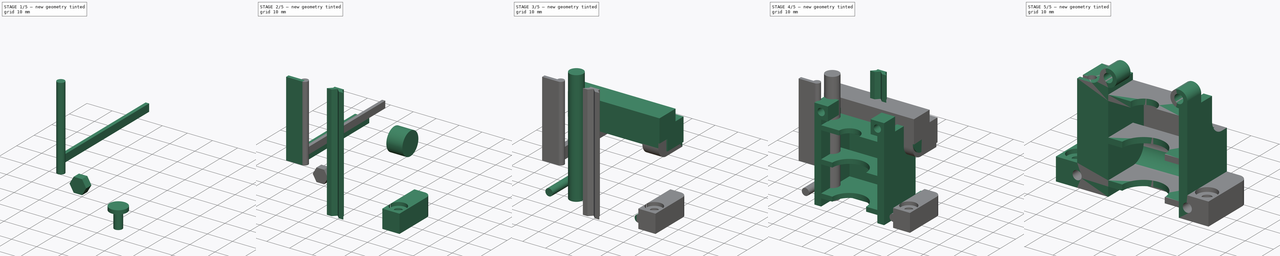
[diagram: build sequence overview — one tinted view per stage of 5, left to right]
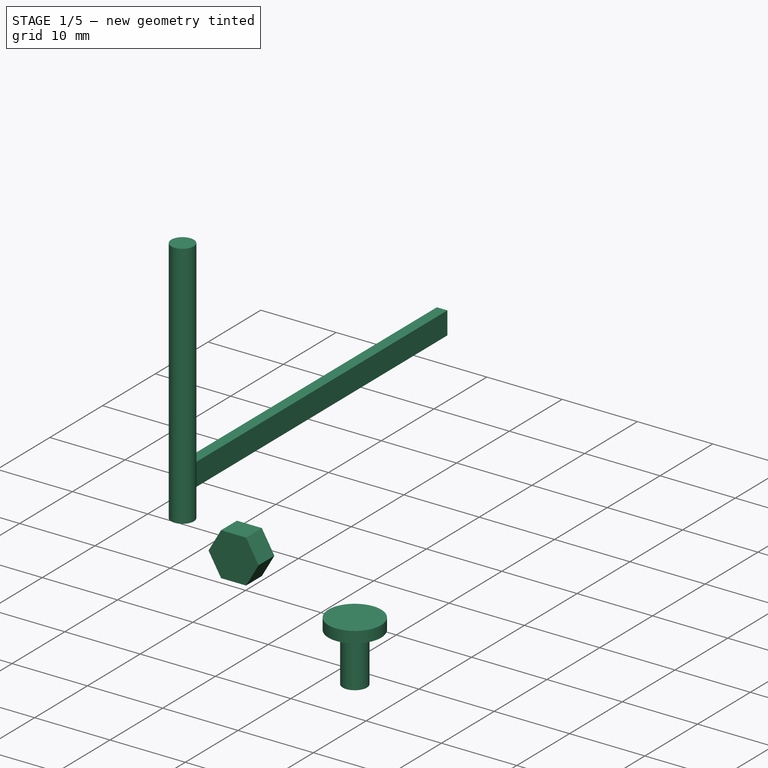
[diagram: stage 1 of 5 — iso view after this stage's code; geometry added in this stage tinted green]
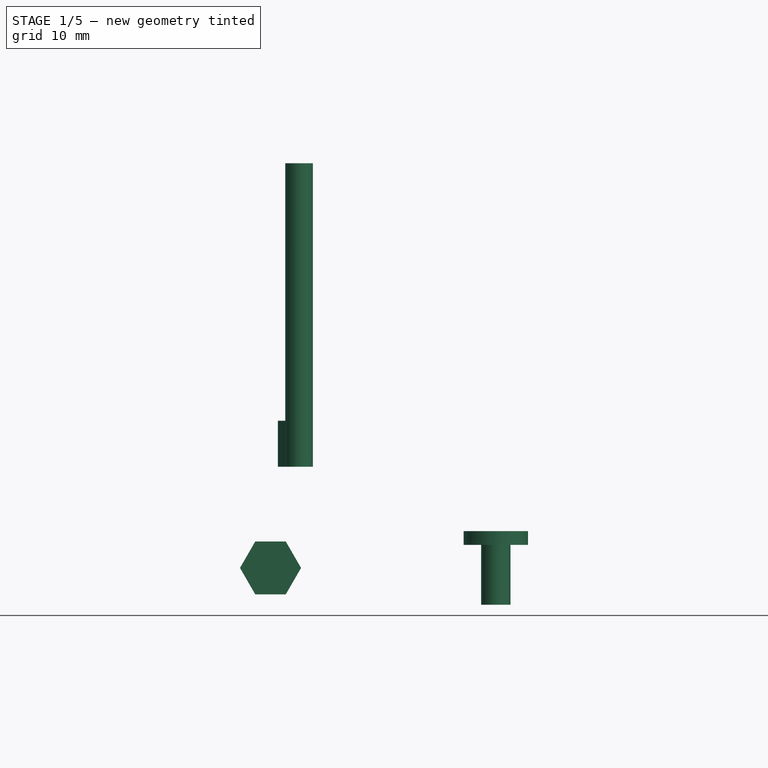
[diagram: stage 1 of 5 — front view after this stage's code; geometry added in this stage tinted green]
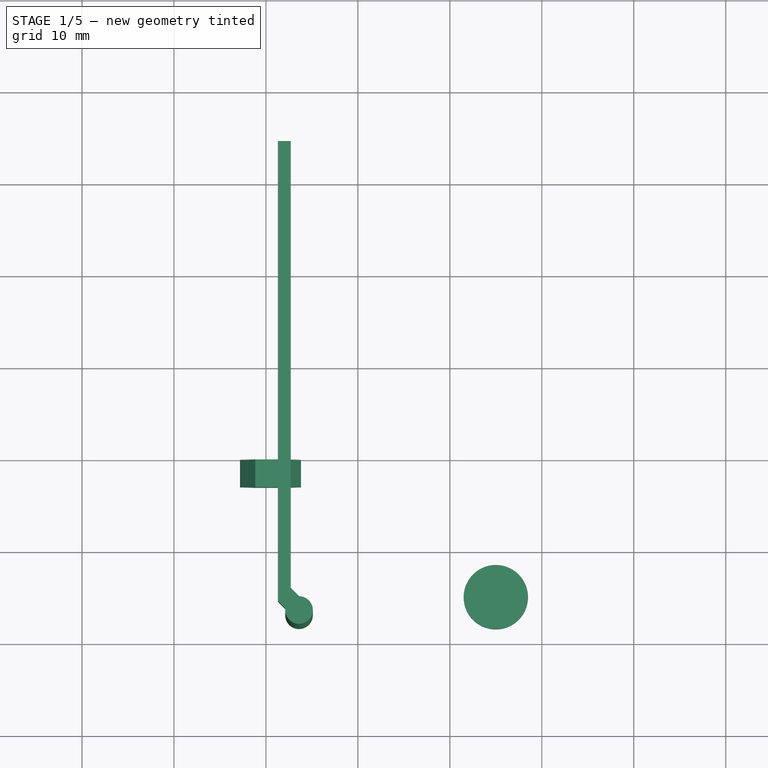
[diagram: stage 1 of 5 — top view after this stage's code; geometry added in this stage tinted green]
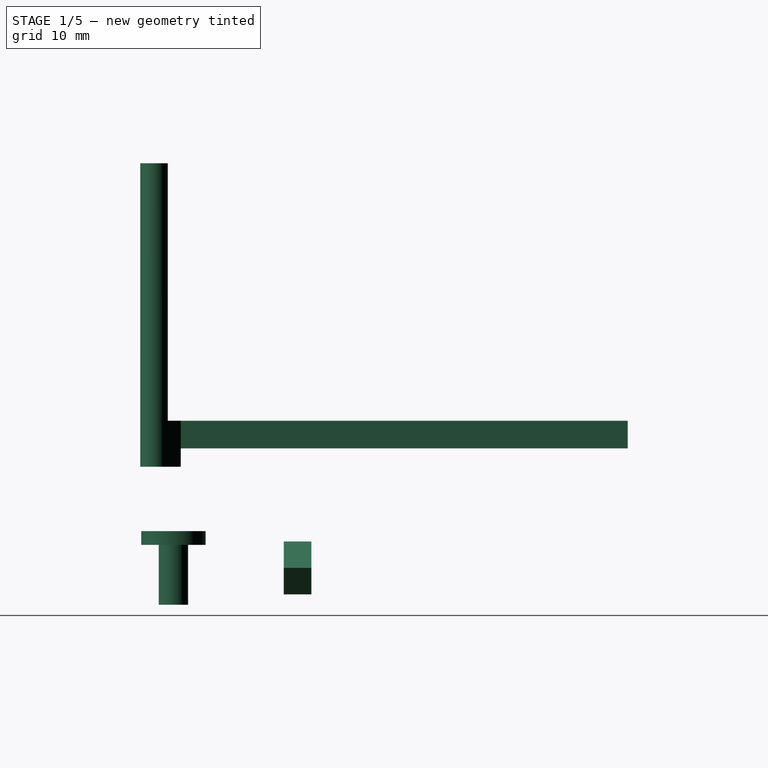
[diagram: stage 1 of 5 — right view after this stage's code; geometry added in this stage tinted green]
FCSTD DOCUMENT  (FreeCAD 0.18R15441 (Git))
Label: HotendClippingRightHalf_E3DV6_Bowden
License: All rights reserved
LicenseURL: http://en.wikipedia.org/wiki/All_rights_reserved
objects: Part::Box×10, Sketcher::SketchObject×8, Part::Cylinder×8, PartDesign::Pad×7, PartDesign::Plane×4, Part::Mirroring×4, PartDesign::Body×3, Part::MultiFuse×3, Part::Fillet×3, Part::Cut×2, PartDesign::Pocket×1, PartDesign::Fillet×1, PartDesign::FeatureBase×1, Part::FeaturePython×1, App::Part×1
note: 64 computed .brp shape members not serialized (recipe doc carries the construction recipe); baked Part::Feature solids carry a one-line shape summary decoded from their .brp

FEATURE [Part::Cylinder] Cylinder  label="ClipCilinder"
  Angle = 360
  AttacherType = Attacher::AttachEngine3D
  Height = 8
  Placement = pos=(5,5,0) rot=(0,0,1;0rad)
  Radius = 1.6
FEATURE [Part::Cylinder] Cylinder010  label="ClipTopCilinder"
  Angle = 360
  AttacherType = Attacher::AttachEngine3D
  Height = 1.5
  Placement = pos=(5,5,6.5) rot=(0,0,1;0rad)
  Radius = 3.5
FEATURE [Part::MultiFuse] Fusion002  label="ClipCilinderFusion"
  Shapes = -> [Cylinder,Cylinder010]
FEATURE [Sketcher::SketchObject] Sketch009  label="NutSketch"
  MapMode = 5
  Placement = pos=(0,0,0) rot=(1,0,0;1.5708rad)
  Support = -> [XZ_Plane003]
  sketch-geometry (7):
    g0: LineSegment StartX=3.31976 StartY=0 StartZ=0 EndX=1.65988 EndY=2.875 EndZ=0
    g1: LineSegment StartX=1.65988 StartY=2.875 StartZ=0 EndX=-1.65988 EndY=2.875 EndZ=0
    g2: LineSegment StartX=-1.65988 StartY=2.875 StartZ=0 EndX=-3.31976 EndY=4e-16 EndZ=0
    g3: LineSegment StartX=-3.31976 StartY=4e-16 StartZ=0 EndX=-1.65988 EndY=-2.875 EndZ=0
    g4: LineSegment StartX=-1.65988 StartY=-2.875 StartZ=0 EndX=1.65988 EndY=-2.875 EndZ=0
    g5: LineSegment StartX=1.65988 StartY=-2.875 StartZ=0 EndX=3.31976 EndY=0 EndZ=0
    g6: Circle [constr] CenterX=0 CenterY=0 CenterZ=0 NormalX=0 NormalY=0 NormalZ=1 AngleXU=0 Radius=3.31976
  constraints (16):
    c: Coincident(g0,g1)
    c: Coincident(g1,g2)
    c: Coincident(g2,g3)
    c: Coincident(g3,g4)
    c: Coincident(g4,g5)
    c: Coincident(g5,g0)
    c: Equal(g0, g1-g5) x5
    c: PointOnObject(g0,g6)
    c: PointOnObject(g1,g6)
    c: PointOnObject(g2,g6)
    c: PointOnObject(g3,g6)
    c: PointOnObject(g4,g6)
    c: PointOnObject(g5,g6)
    c: Coincident(g6,g-1)
    c: PointOnObject(g5,g-1)
    c: Distance(g4,g0) = 5.75
FEATURE [PartDesign::Pad] Pad006  label="NutPad"
  Length = 3
  Length2 = 100
  Placement = pos=(0,0,0) rot=(1,0,0;1.5708rad)
  Profile = -> Sketch009
  Reversed = true
  Type = 0
FEATURE [PartDesign::Body] Body002  label="NutBody"
  Group = -> [Sketch009,Pad006]
  Origin = -> Origin003
  Placement = pos=(19.5,17,4) rot=(0,0,1;0rad)
  Tip = -> Pad006
FEATURE [PartDesign::FeatureBase] Clone  label="NutClone"
  BaseFeature = -> Body002
  Placement = pos=(-19.5,17,4) rot=(0,0,1;0rad)
FEATURE [Part::Cylinder] Cylinder011  label="FanWiresChannelCilinder1"
  Angle = 360
  AttacherType = Attacher::AttachEngine3D
  Height = 33
  Placement = pos=(-16.4,2.9,15) rot=(0,0,1;0rad)
  Radius = 1.5
FEATURE [Part::Box] Box013  label="FanWiresChannelCube1"
  AttacherType = Attacher::AttachEngine3D
  Height = 3
  Length = 1.4
  Placement = pos=(-18.7,4.4,17) rot=(0,0,1;0rad)
  Width = 50
FEATURE [Part::Box] Box014  label="FanWiresChannelCube2"
  AttacherType = Attacher::AttachEngine3D
  Height = 5
  Length = 2
  Placement = pos=(-16.5787,2.25858,15) rot=(0,0,1;0.785398rad)
  Width = 3
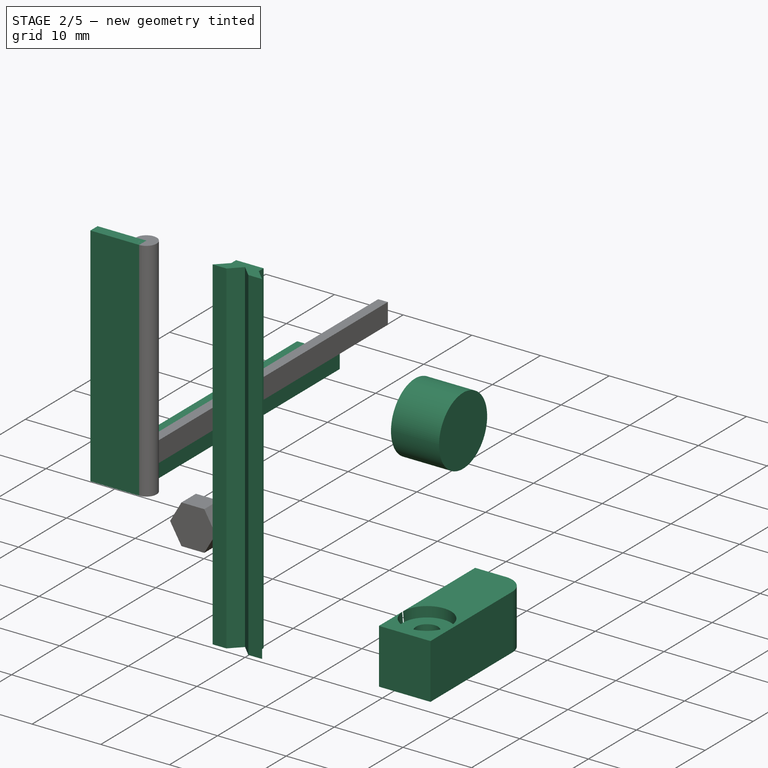
[diagram: stage 2 of 5 — iso view after this stage's code; geometry added in this stage tinted green]
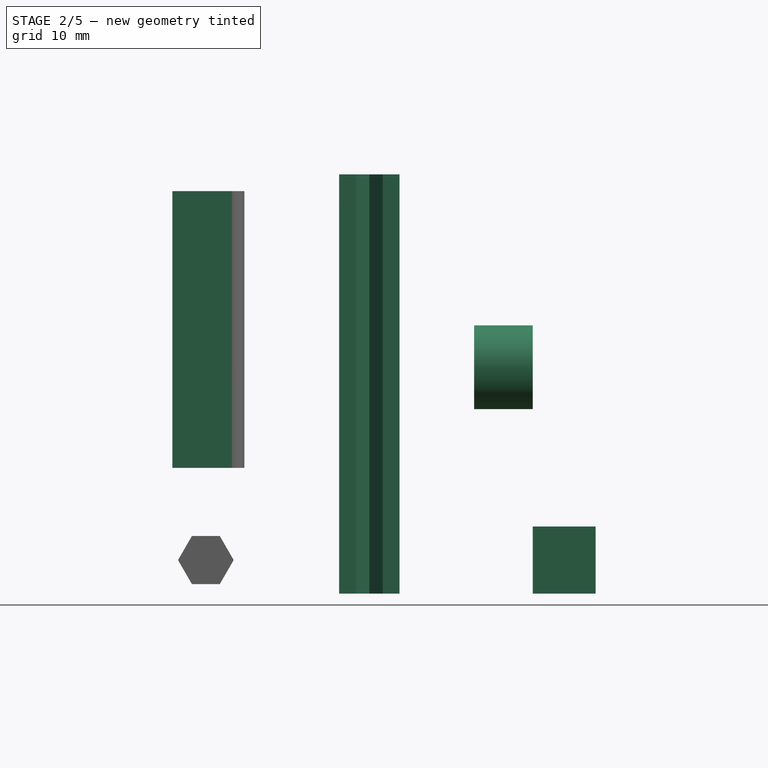
[diagram: stage 2 of 5 — front view after this stage's code; geometry added in this stage tinted green]
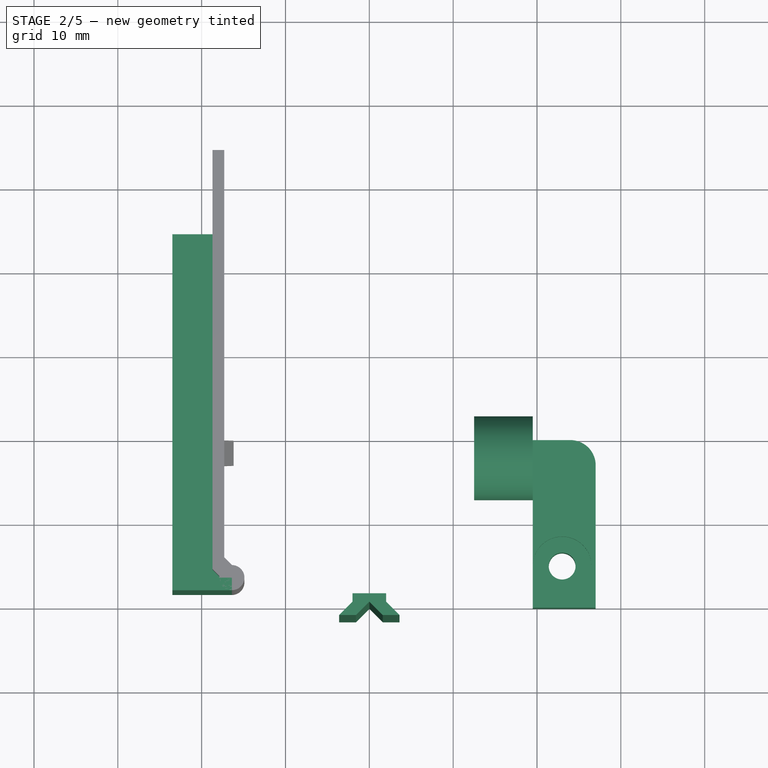
[diagram: stage 2 of 5 — top view after this stage's code; geometry added in this stage tinted green]
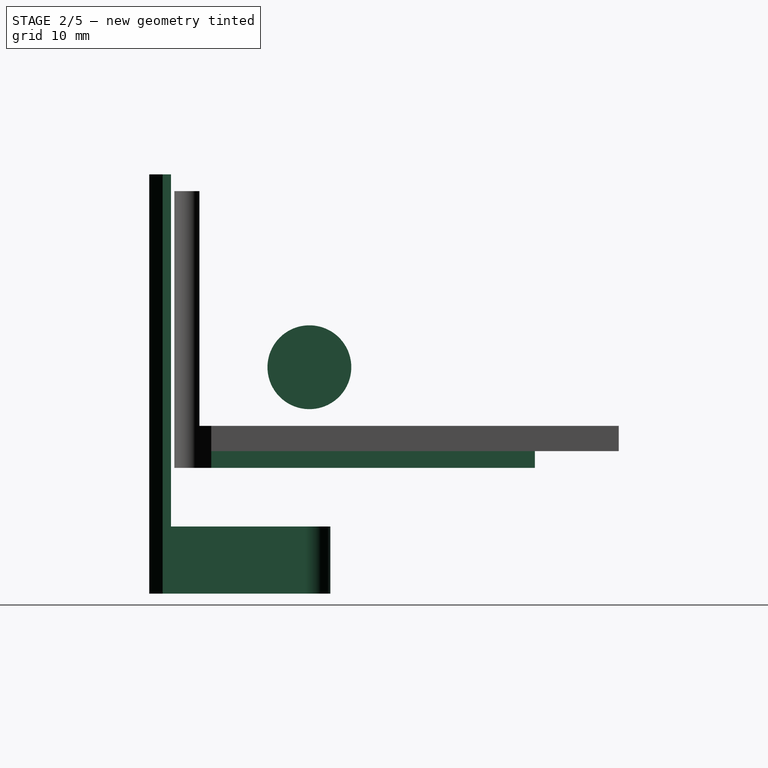
[diagram: stage 2 of 5 — right view after this stage's code; geometry added in this stage tinted green]
FEATURE [Part::Box] Box  label="ClipCube"
  AttacherType = Attacher::AttachEngine3D
  Height = 8
  Length = 7.5
  Placement = pos=(1.5,0,0) rot=(0,0,1;0rad)
  Width = 20
FEATURE [PartDesign::Body] Body  label="RadiatorClipBody"
  Group = -> [Sketch,Pad,DatumPlane,Sketch001,Pad001,DatumPlane001,Sketch002,Pad002,DatumPlane002,Sketch003,Pad003,DatumPlane003,Sketch004,Pocket,Sketch007,Pad004,Fillet]
  Origin = -> Origin001
  Placement = pos=(4,0,0) rot=(0,0,1;0rad)
  Tip = -> Fillet
FEATURE [Part::Cylinder] Cylinder008  label="SideNutCutCilinder"
  Angle = 360
  AttacherType = Attacher::AttachEngine3D
  Height = 7
  Placement = pos=(-19.5,17.5,27) rot=(0,1,0;1.5708rad)
  Radius = 5
FEATURE [Part::Mirroring] Part__Mirroring003  label="SideNutCutCilinder_Mirror"
  Base = (0,0,0)
  Normal = (1,0,0)
  Source = -> Cylinder008
FEATURE [Sketcher::SketchObject] Sketch008  label="RailSketch"
  MapMode = 5
  Support = -> [XY_Plane002]
  sketch-geometry (9):
    g0: LineSegment StartX=-2 StartY=0 StartZ=0 EndX=-3.6 EndY=-1.6 EndZ=0
    g1: LineSegment StartX=2 StartY=0 StartZ=0 EndX=3.6 EndY=-1.6 EndZ=0
    g2: LineSegment StartX=0 StartY=0 StartZ=0 EndX=-1.6 EndY=-1.6 EndZ=0
    g3: LineSegment StartX=0 StartY=0 StartZ=0 EndX=1.6 EndY=-1.6 EndZ=0
    g4: LineSegment StartX=3.6 StartY=-1.6 StartZ=0 EndX=1.6 EndY=-1.6 EndZ=0
    g5: LineSegment StartX=-1.6 StartY=-1.6 StartZ=0 EndX=-3.6 EndY=-1.6 EndZ=0
    g6: LineSegment StartX=-2 StartY=0 StartZ=0 EndX=-2 EndY=1 EndZ=0
    g7: LineSegment StartX=-2 StartY=1 StartZ=0 EndX=2 EndY=1 EndZ=0
    g8: LineSegment StartX=2 StartY=1 StartZ=0 EndX=2 EndY=0 EndZ=0
  constraints (23):
    c: PointOnObject(g0,g-1)
    c: Symmetric(g0,g1,g-2)
    c: Coincident(g2,g-1)
    c: Coincident(g3,g2)
    c: Coincident(g4,g1)
    c: Coincident(g4,g3)
    c: Horizontal(g4)
    c: Coincident(g5,g2)
    c: Coincident(g5,g0)
    c: Symmetric(g2,g3,g-2)
    c: Symmetric(g1,g0,g-2)
    c: Parallel(g1,g3)
    c: DistanceY(g-1,g1) = -1.6
    c: Angle(g2,g3) = 1.5708
    c: Coincident(g6,g0)
    c: Vertical(g6)
    c: Coincident(g7,g6)
    c: Horizontal(g7)
    c: Coincident(g8,g7)
    c: Coincident(g8,g1)
    c: Vertical(g8)
    c: Distance(g8) = 1
    c: Distance(g7) = 4
FEATURE [PartDesign::Pad] Pad005  label="RailPad"
  Length = 50
  Length2 = 100
  Profile = -> Sketch008
  Type = 0
FEATURE [PartDesign::Body] Body001  label="RearClipRailBody"
  Group = -> [Sketch008,Pad005]
  Origin = -> Origin002
  Placement = pos=(0,20,0) rot=(0,0,1;0rad)
  Tip = -> Pad005
FEATURE [Part::Box] Box011  label="FanWiresChannelCube"
  AttacherType = Attacher::AttachEngine3D
  Height = 2
  Length = 6.2
  Placement = pos=(-23.5,1.4,15) rot=(0,0,1;0rad)
  Width = 43
FEATURE [Part::Box] Box012  label="HeaterWiresChannelCube"
  AttacherType = Attacher::AttachEngine3D
  Height = 33
  Length = 7.1
  Placement = pos=(-23.5,1.4,15) rot=(0,0,1;0rad)
  Width = 1.5
FEATURE [Part::Cut] Cut  label="RightClipCut"
  Base = -> Box
  Placement = pos=(18,0,0) rot=(0,0,1;0rad)
  Tool = -> Fusion002
FEATURE [Part::Fillet] Fillet001  label="RightClipCutFillet"
  Base = -> Cut
  Edges = 1 edges r=3: [Edge17]
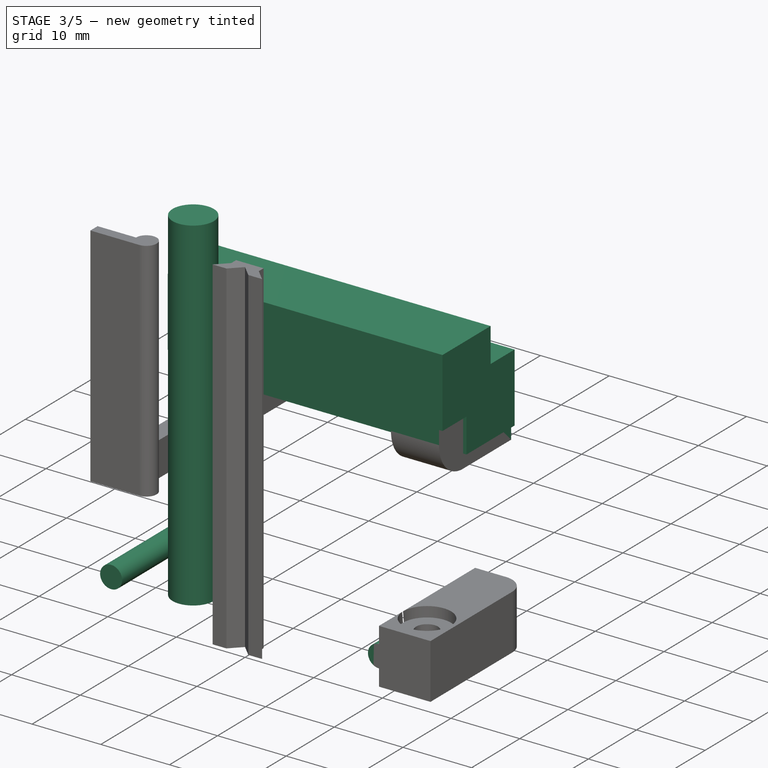
[diagram: stage 3 of 5 — iso view after this stage's code; geometry added in this stage tinted green]
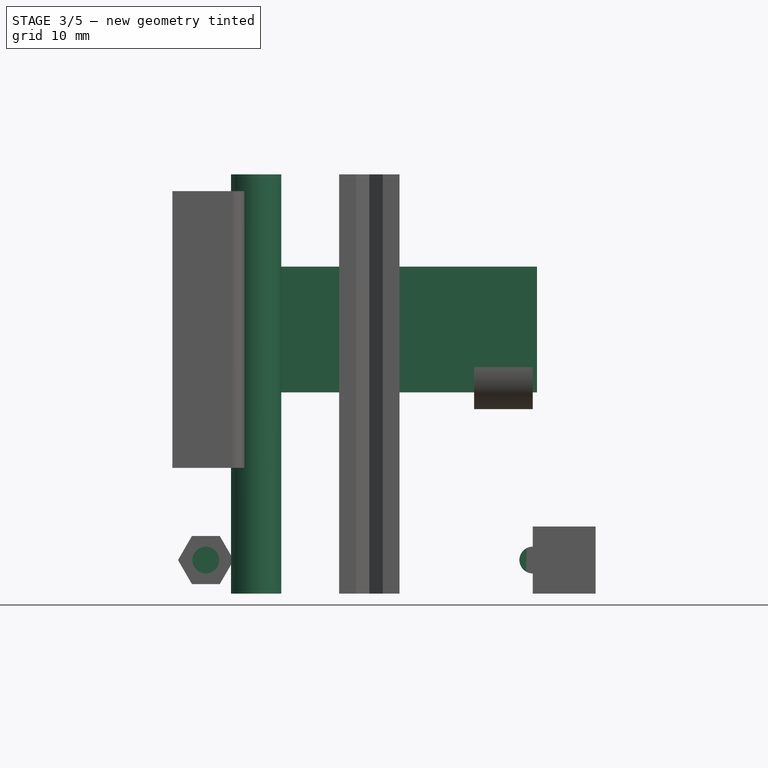
[diagram: stage 3 of 5 — front view after this stage's code; geometry added in this stage tinted green]
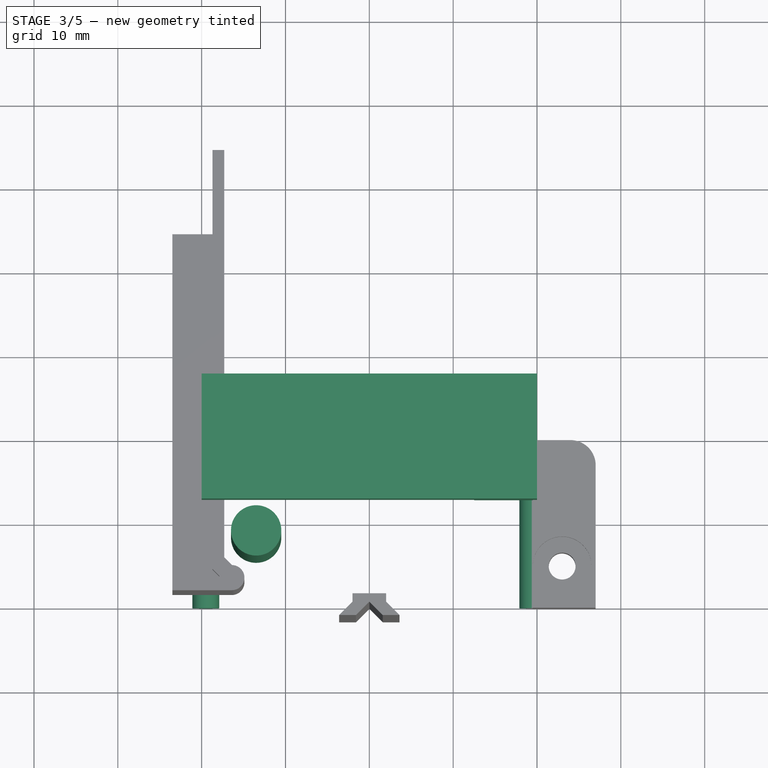
[diagram: stage 3 of 5 — top view after this stage's code; geometry added in this stage tinted green]
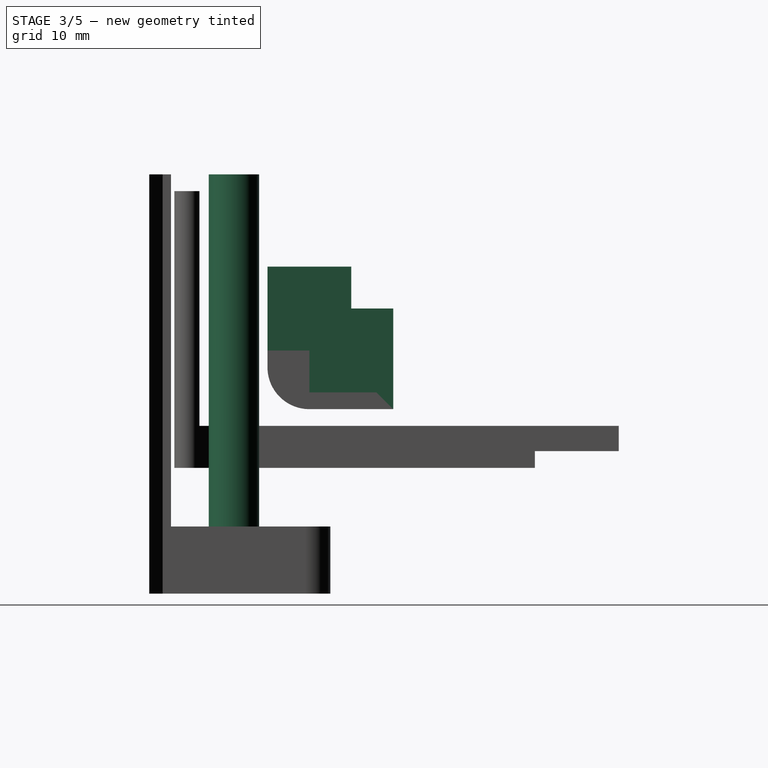
[diagram: stage 3 of 5 — right view after this stage's code; geometry added in this stage tinted green]
FEATURE [Part::Box] Box002  label="TopRodCutCube1"
  AttacherType = Attacher::AttachEngine3D
  Height = 10
  Length = 40
  Placement = pos=(-20,12.5,29) rot=(0,0,1;0rad)
  Width = 10
FEATURE [Part::Box] Box003  label="TopRodCutCube2"
  AttacherType = Attacher::AttachEngine3D
  Height = 10
  Length = 40
  Placement = pos=(-20,17.5,24) rot=(0,0,1;0rad)
  Width = 10
FEATURE [Part::Cylinder] Cylinder003  label="BottomClipCilinder1"
  Angle = 360
  AttacherType = Attacher::AttachEngine3D
  Height = 20
  Placement = pos=(19.5,4e-15,4) rot=(-1,0,0;1.5708rad)
  Radius = 1.6
FEATURE [Part::Cylinder] Cylinder005  label="BottomClipCilinder3"
  Angle = 360
  AttacherType = Attacher::AttachEngine3D
  Height = 20
  Placement = pos=(-19.5,4e-15,4) rot=(-1,0,0;1.5708rad)
  Radius = 1.6
FEATURE [Part::Cylinder] Cylinder007  label="HeaterWiresChannelCilinder"
  Angle = 360
  AttacherType = Attacher::AttachEngine3D
  Height = 50
  Placement = pos=(-13.5,8.5,0) rot=(0,0,1;0rad)
  Radius = 3
FEATURE [Part::Box] Box009  label="SideNutCutCube1"
  AttacherType = Attacher::AttachEngine3D
  Height = 10
  Length = 7
  Placement = pos=(-19.5,12.5,27) rot=(0,0,1;0rad)
  Width = 10
FEATURE [Part::Box] Box010  label="SineNutCutCube2"
  AttacherType = Attacher::AttachEngine3D
  Height = 10
  Length = 7
  Placement = pos=(-19.5,17.5,22) rot=(0,0,1;0rad)
  Width = 10
FEATURE [Part::Mirroring] Part__Mirroring001  label="SideNutCutCube1_Mirror"
  Base = (0,0,0)
  Normal = (1,0,0)
  Source = -> Box009
FEATURE [Part::Mirroring] Part__Mirroring002  label="SineNutCutCube2_Mirror"
  Base = (0,0,0)
  Normal = (1,0,0)
  Source = -> Box010
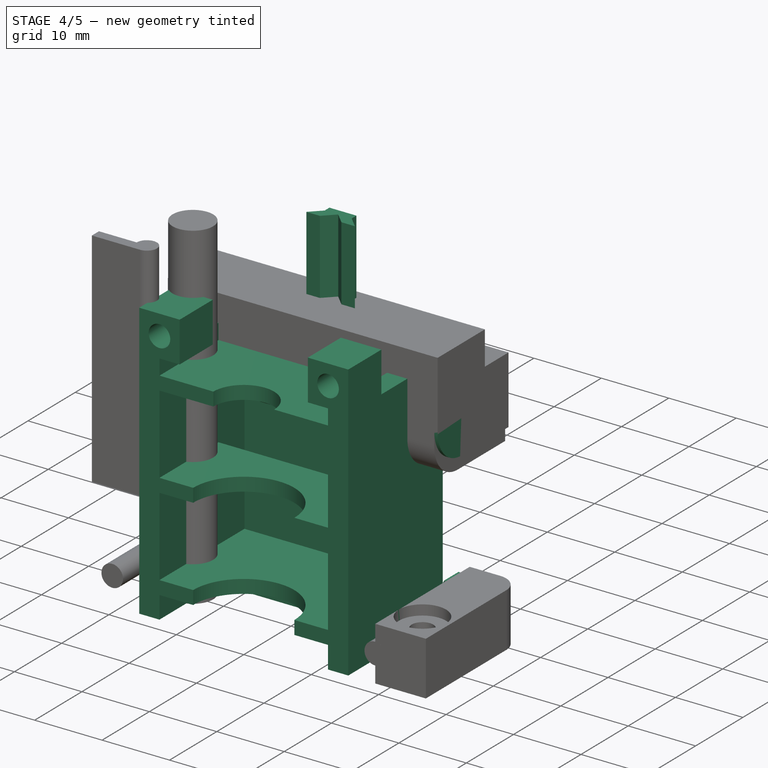
[diagram: stage 4 of 5 — iso view after this stage's code; geometry added in this stage tinted green]
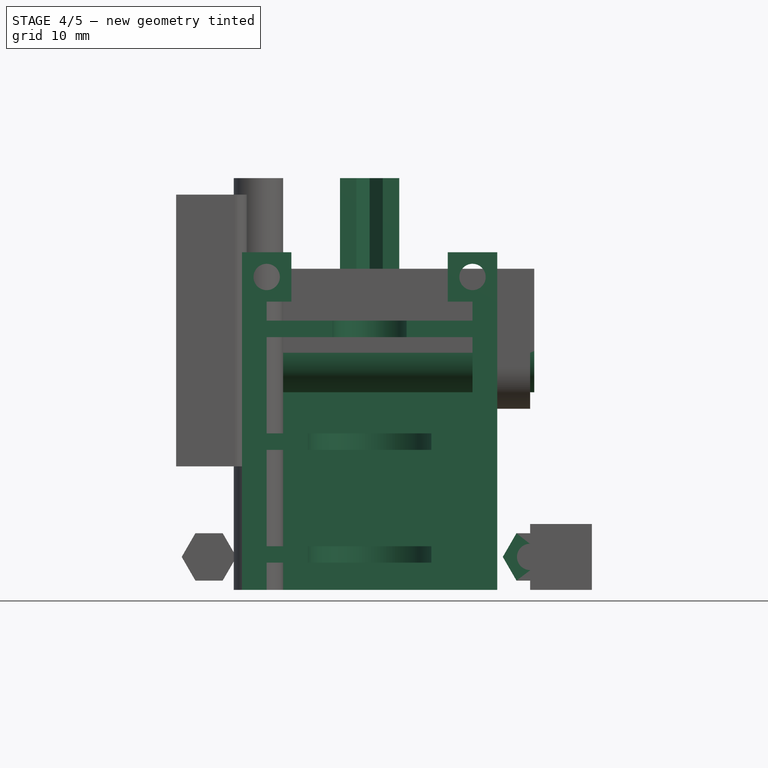
[diagram: stage 4 of 5 — front view after this stage's code; geometry added in this stage tinted green]
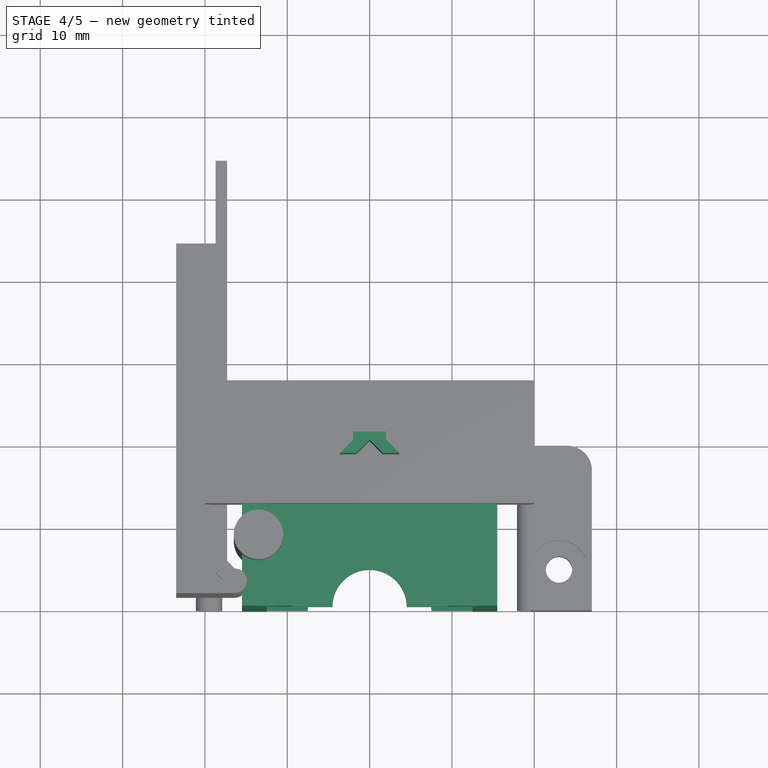
[diagram: stage 4 of 5 — top view after this stage's code; geometry added in this stage tinted green]
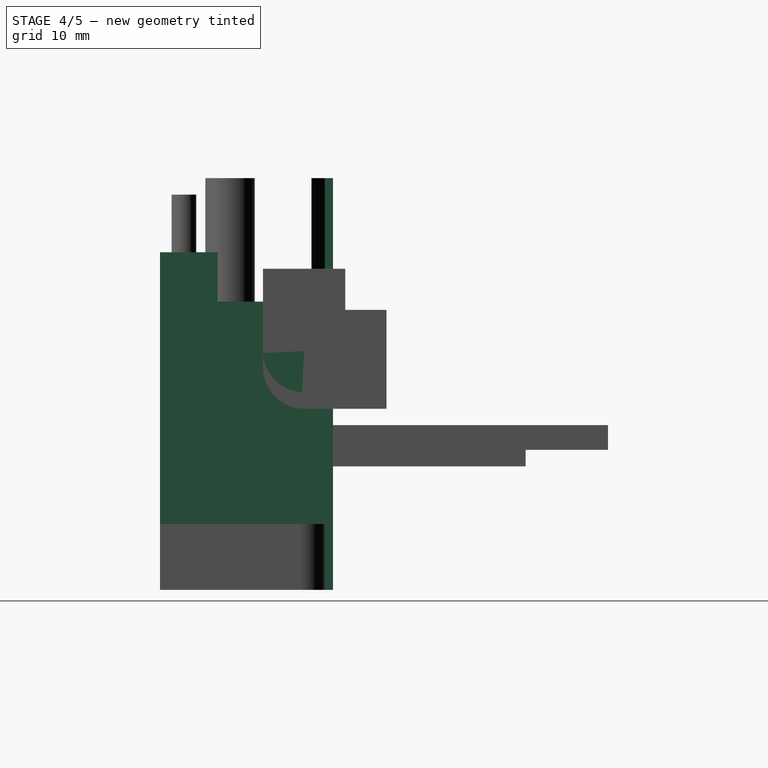
[diagram: stage 4 of 5 — right view after this stage's code; geometry added in this stage tinted green]
FEATURE [Sketcher::SketchObject] Sketch  label="BaseSketch"
  MapMode = 5
  Support = -> [XY_Plane001]
  sketch-geometry (8):
    g0: LineSegment StartX=-12.5 StartY=0 StartZ=0 EndX=-15.5 EndY=0 EndZ=0
    g1: LineSegment StartX=12.5 StartY=0 StartZ=0 EndX=15.5 EndY=0 EndZ=0
    g2: LineSegment StartX=-15.5 StartY=0 StartZ=0 EndX=-15.5 EndY=20 EndZ=0
    g3: LineSegment StartX=-15.5 StartY=20 StartZ=0 EndX=15.5 EndY=20 EndZ=0
    g4: LineSegment StartX=15.5 StartY=20 StartZ=0 EndX=15.5 EndY=0 EndZ=0
    g5: LineSegment StartX=-12.5 StartY=0 StartZ=0 EndX=-12.5 EndY=12.5 EndZ=0
    g6: LineSegment StartX=-12.5 StartY=12.5 StartZ=0 EndX=12.5 EndY=12.5 EndZ=0
    g7: LineSegment StartX=12.5 StartY=12.5 StartZ=0 EndX=12.5 EndY=0 EndZ=0
  constraints (22):
    c: PointOnObject(g0,g-1)
    c: PointOnObject(g0,g-1)
    c: Coincident(g2,g0)
    c: Vertical(g2)
    c: Coincident(g3,g2)
    c: Horizontal(g3)
    c: Coincident(g4,g3)
    c: Coincident(g4,g1)
    c: Vertical(g4)
    c: Symmetric(g1,g0,g-2)
    c: Distance(g4) = 20
    c: Distance(g3) = 31
    c: Symmetric(g1,g0,g-2)
    c: Coincident(g5,g0)
    c: Vertical(g5)
    c: Coincident(g6,g5)
    c: Horizontal(g6)
    c: Coincident(g7,g6)
    c: Coincident(g7,g1)
    c: Vertical(g7)
    c: Distance(g6) = 25
    c: Distance(g7) = 12.5
FEATURE [PartDesign::Pad] Pad  label="BasePad"
  Length = 35
  Length2 = 100
  Profile = -> Sketch
  Type = 0
FEATURE [PartDesign::Plane] DatumPlane  label="Clip1Plane"
  AttachmentOffset = pos=(0,0,3.3) rot=(0,0,1;0rad)
  Length = 37.0992
  MapMode = 5
  Placement = pos=(0,0,3.3) rot=(0,0,1;0rad)
  ResizeMode = 0
  Support = -> [XY_Plane001]
  Width = 36.0992
FEATURE [Sketcher::SketchObject] Sketch001  label="Clip1Sketch"
  ExternalGeometry = -> [Sketch]
  MapMode = 5
  Placement = pos=(0,0,3.3) rot=(0,0,1;0rad)
  Support = -> [DatumPlane]
  sketch-geometry (6):
    g0: ArcOfCircle CenterX=0 CenterY=0 CenterZ=0 NormalX=0 NormalY=0 NormalZ=1 AngleXU=0 Radius=7.5 StartAngle=0 EndAngle=3.14159
    g1: LineSegment StartX=-7.5 StartY=0 StartZ=0 EndX=-12.5 EndY=0 EndZ=0
    g2: LineSegment StartX=-12.5 StartY=0 StartZ=0 EndX=-12.5 EndY=12.5 EndZ=0
    g3: LineSegment StartX=-12.5 StartY=12.5 StartZ=0 EndX=12.5 EndY=12.5 EndZ=0
    g4: LineSegment StartX=12.5 StartY=12.5 StartZ=0 EndX=12.5 EndY=0 EndZ=0
    g5: LineSegment StartX=12.5 StartY=0 StartZ=0 EndX=7.5 EndY=0 EndZ=0
  constraints (14):
    c: Coincident(g0,g-1)
    c: PointOnObject(g0,g-1)
    c: PointOnObject(g0,g-1)
    c: Coincident(g1,g0)
    c: Coincident(g1,g-3)
    c: Coincident(g2,g1)
    c: Coincident(g2,g-4)
    c: Coincident(g3,g2)
    c: Coincident(g3,g-5)
    c: Coincident(g4,g3)
    c: Coincident(g4,g-5)
    c: Coincident(g5,g4)
    c: Coincident(g5,g0)
    c: Radius(g0) = 7.5
FEATURE [PartDesign::Pad] Pad001  label="Clip1Pad"
  BaseFeature = -> Pad
  Length = 2
  Length2 = 100
  Profile = -> Sketch001
  Type = 0
FEATURE [PartDesign::Plane] DatumPlane001  label="Clip2Plane"
  AttachmentOffset = pos=(0,0,17) rot=(0,0,1;0rad)
  Length = 37.0992
  MapMode = 5
  Placement = pos=(0,0,17) rot=(0,0,1;0rad)
  ResizeMode = 0
  Support = -> [XY_Plane001]
  Width = 36.0992
FEATURE [Sketcher::SketchObject] Sketch002  label="Clip2Sketch"
  ExternalGeometry = -> [Sketch001]
  MapMode = 5
  Placement = pos=(0,0,17) rot=(0,0,1;0rad)
  Support = -> [DatumPlane001]
  sketch-geometry (6):
    g0: LineSegment StartX=7.5 StartY=0 StartZ=0 EndX=12.5 EndY=0 EndZ=0
    g1: LineSegment StartX=12.5 StartY=0 StartZ=0 EndX=12.5 EndY=12.5 EndZ=0
    g2: LineSegment StartX=12.5 StartY=12.5 StartZ=0 EndX=-12.5 EndY=12.5 EndZ=0
    g3: LineSegment StartX=-12.5 StartY=12.5 StartZ=0 EndX=-12.5 EndY=0 EndZ=0
    g4: LineSegment StartX=-12.5 StartY=0 StartZ=0 EndX=-7.5 EndY=0 EndZ=0
    g5: ArcOfCircle CenterX=0 CenterY=0 CenterZ=0 NormalX=0 NormalY=0 NormalZ=1 AngleXU=0 Radius=7.5 StartAngle=0 EndAngle=3.14159
  constraints (13):
    c: Coincident(g0,g-4)
    c: Coincident(g1,g0)
    c: Coincident(g1,g-4)
    c: Coincident(g2,g1)
    c: Coincident(g2,g-5)
    c: Coincident(g3,g2)
    c: Coincident(g3,g-5)
    c: Coincident(g4,g3)
    c: Coincident(g4,g-6)
    c: Coincident(g0,g-6)
    c: Coincident(g5,g-1)
    c: Coincident(g5,g4)
    c: Coincident(g5,g0)
FEATURE [PartDesign::Pad] Pad002  label="Clip2Pad"
  BaseFeature = -> Pad001
  Length = 2
  Length2 = 100
  Profile = -> Sketch002
  Type = 0
FEATURE [PartDesign::Plane] DatumPlane002  label="Clip3Plane"
  AttachmentOffset = pos=(0,0,30.7) rot=(0,0,1;0rad)
  Length = 37.0992
  MapMode = 5
  Placement = pos=(0,0,30.7) rot=(0,0,1;0rad)
  ResizeMode = 0
  Support = -> [XY_Plane001]
  Width = 36.0992
FEATURE [Sketcher::SketchObject] Sketch003  label="Clip3Sketch"
  ExternalGeometry = -> [Sketch001]
  MapMode = 5
  Placement = pos=(0,0,30.7) rot=(0,0,1;0rad)
  Support = -> [DatumPlane002]
  sketch-geometry (6):
    g0: LineSegment StartX=-12.5 StartY=0 StartZ=0 EndX=-12.5 EndY=12.5 EndZ=0
    g1: LineSegment StartX=-12.5 StartY=12.5 StartZ=0 EndX=12.5 EndY=12.5 EndZ=0
    g2: LineSegment StartX=12.5 StartY=12.5 StartZ=0 EndX=12.5 EndY=0 EndZ=0
    g3: ArcOfCircle CenterX=0 CenterY=0 CenterZ=0 NormalX=0 NormalY=0 NormalZ=1 AngleXU=0 Radius=4.5 StartAngle=0 EndAngle=3.14159
    g4: LineSegment StartX=-4.5 StartY=-1e-12 StartZ=0 EndX=-12.5 EndY=0 EndZ=0
    g5: LineSegment StartX=4.5 StartY=0 StartZ=0 EndX=12.5 EndY=0 EndZ=0
  constraints (14):
    c: Coincident(g0,g-3)
    c: Coincident(g0,g-4)
    c: Coincident(g1,g0)
    c: Coincident(g1,g-5)
    c: Coincident(g2,g1)
    c: Coincident(g2,g-5)
    c: Coincident(g3,g-1)
    c: PointOnObject(g3,g-1)
    c: PointOnObject(g3,g-1)
    c: Coincident(g4,g3)
    c: Coincident(g4,g0)
    c: Coincident(g5,g3)
    c: Coincident(g5,g2)
    c: Radius(g3) = 4.5
FEATURE [PartDesign::Pad] Pad003  label="Clip3Pad"
  BaseFeature = -> Pad002
  Length = 2
  Length2 = 100
  Profile = -> Sketch003
  Type = 0
FEATURE [PartDesign::Plane] DatumPlane003  label="CutPlane"
  AttachmentOffset = pos=(0,0,5.3) rot=(0,0,1;0rad)
  Length = 37.0992
  MapMode = 5
  Placement = pos=(0,0,5.3) rot=(0,0,1;0rad)
  ResizeMode = 0
  Support = -> [XY_Plane001]
  Width = 36.0992
FEATURE [Sketcher::SketchObject] Sketch004  label="CutSketch"
  ExternalGeometry = -> [Sketch]
  MapMode = 5
  Placement = pos=(0,0,5.3) rot=(0,0,1;0rad)
  Support = -> [DatumPlane003]
  sketch-geometry (4):
    g0: LineSegment StartX=-12.5 StartY=12.5 StartZ=0 EndX=-12.5 EndY=18 EndZ=0
    g1: LineSegment StartX=-12.5 StartY=18 StartZ=0 EndX=12.5 EndY=18 EndZ=0
    g2: LineSegment StartX=12.5 StartY=18 StartZ=0 EndX=12.5 EndY=12.5 EndZ=0
    g3: LineSegment StartX=-12.5 StartY=12.5 StartZ=0 EndX=12.5 EndY=12.5 EndZ=0
  constraints (10):
    c: Coincident(g0,g-4)
    c: Vertical(g0)
    c: Coincident(g1,g0)
    c: Coincident(g2,g1)
    c: Coincident(g2,g-5)
    c: Vertical(g2)
    c: Coincident(g3,g0)
    c: Coincident(g3,g2)
    c: Horizontal(g1)
    c: Distance(g0,g-3) = 2
FEATURE [PartDesign::Pocket] Pocket  label="CutPocket"
  BaseFeature = -> Pad003
  Length = 5
  Length2 = 100
  Profile = -> Sketch004
  Reversed = true
  Type = 1
FEATURE [Part::Cylinder] Cylinder002  label="TopRodCutCilinder"
  Angle = 360
  AttacherType = Attacher::AttachEngine3D
  Height = 40
  Placement = pos=(-20,17.5,29) rot=(0,1,0;1.5708rad)
  Radius = 5
FEATURE [Sketcher::SketchObject] Sketch007  label="StructuralClipSketch"
  MapMode = 5
  Placement = pos=(0,0,0) rot=(1,0,0;1.5708rad)
  Support = -> [XZ_Plane001]
  sketch-geometry (10):
    g0: LineSegment StartX=-15.5 StartY=41 StartZ=0 EndX=-9.5 EndY=41 EndZ=0
    g1: LineSegment StartX=-9.5 StartY=41 StartZ=0 EndX=-9.5 EndY=35 EndZ=0
    g2: LineSegment StartX=-9.5 StartY=35 StartZ=0 EndX=-15.5 EndY=35 EndZ=0
    g3: LineSegment StartX=-15.5 StartY=35 StartZ=0 EndX=-15.5 EndY=41 EndZ=0
    g4: LineSegment StartX=15.5 StartY=41 StartZ=0 EndX=9.5 EndY=41 EndZ=0
    g5: LineSegment StartX=9.5 StartY=41 StartZ=0 EndX=9.5 EndY=35 EndZ=0
    g6: LineSegment StartX=9.5 StartY=35 StartZ=0 EndX=15.5 EndY=35 EndZ=0
    g7: LineSegment StartX=15.5 StartY=35 StartZ=0 EndX=15.5 EndY=41 EndZ=0
    g8: Circle CenterX=12.5 CenterY=38 CenterZ=0 NormalX=0 NormalY=0 NormalZ=1 AngleXU=0 Radius=1.6
    g9: Circle CenterX=-12.5 CenterY=38 CenterZ=0 NormalX=0 NormalY=0 NormalZ=1 AngleXU=0 Radius=1.6
  constraints (28):
    c: Coincident(g0,g1)
    c: Coincident(g1,g2)
    c: Coincident(g2,g3)
    c: Coincident(g3,g0)
    c: Horizontal(g0)
    c: Horizontal(g2)
    c: Vertical(g1)
    c: Vertical(g3)
    c: Coincident(g4,g5)
    c: Coincident(g5,g6)
    c: Coincident(g6,g7)
    c: Coincident(g7,g4)
    c: Horizontal(g4)
    c: Horizontal(g6)
    c: Vertical(g5)
    c: Vertical(g7)
    c: Symmetric(g1,g5,g-2)
    c: Equal(g2,g6)
    c: Equal(g1,g5)
    c: DistanceY(g-1,g1) = 35
    c: DistanceX(g-2,g5) = 9.5
    c: Distance(g4) = 6
    c: Symmetric(g8,g9,g-2)
    c: Equal(g8,g9)
    c: Radius(g9) = 1.6
    c: Distance(g3) = 6
    c: Distance(g9,g2) = 3
    c: Distance(g9,g3) = 3
FEATURE [PartDesign::Pad] Pad004  label="StructuralClipPad"
  BaseFeature = -> Pocket
  Length = 7
  Length2 = 100
  Profile = -> Sketch007
  Reversed = true
  Type = 0
FEATURE [Part::MultiFuse] Fusion  label="CaseCutsFusion"
  Shapes = -> [Cylinder002,Box002,Box003,Cylinder003,Cylinder005,Cylinder007,Cylinder008,Box009,Box010,Part__Mirroring001,Part__Mirroring002,Part__Mirroring003,Body001,Box011,Box012,Body002,Clone,Cylinder011,Box013,Box014]
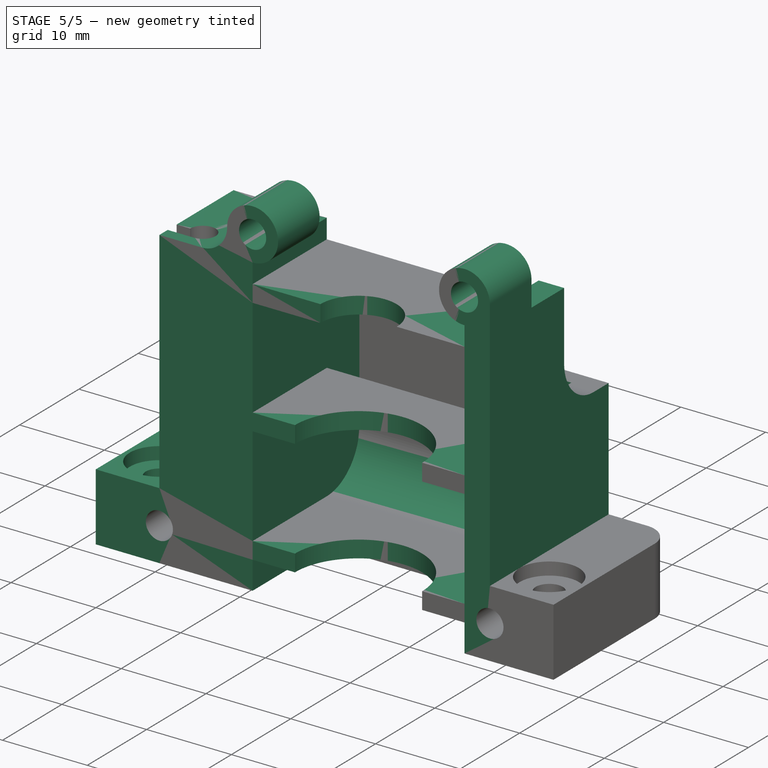
[diagram: stage 5 of 5 — iso view after this stage's code; geometry added in this stage tinted green]
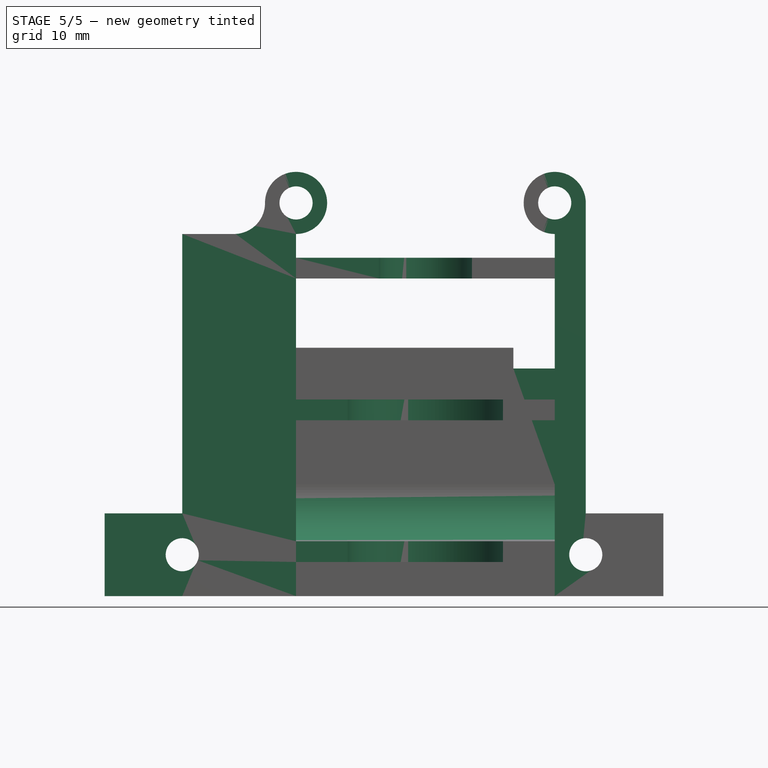
[diagram: stage 5 of 5 — front view after this stage's code; geometry added in this stage tinted green]
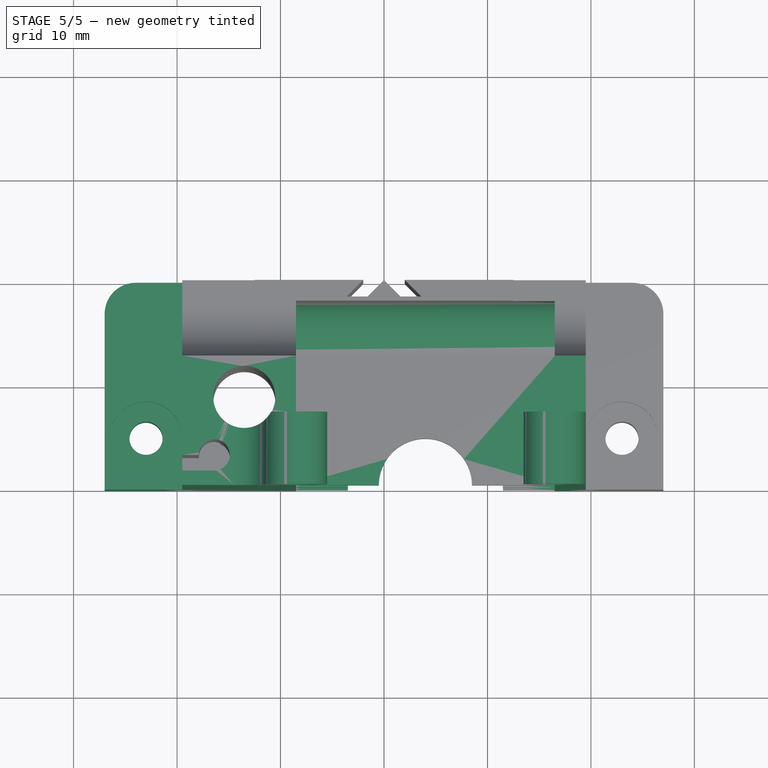
[diagram: stage 5 of 5 — top view after this stage's code; geometry added in this stage tinted green]
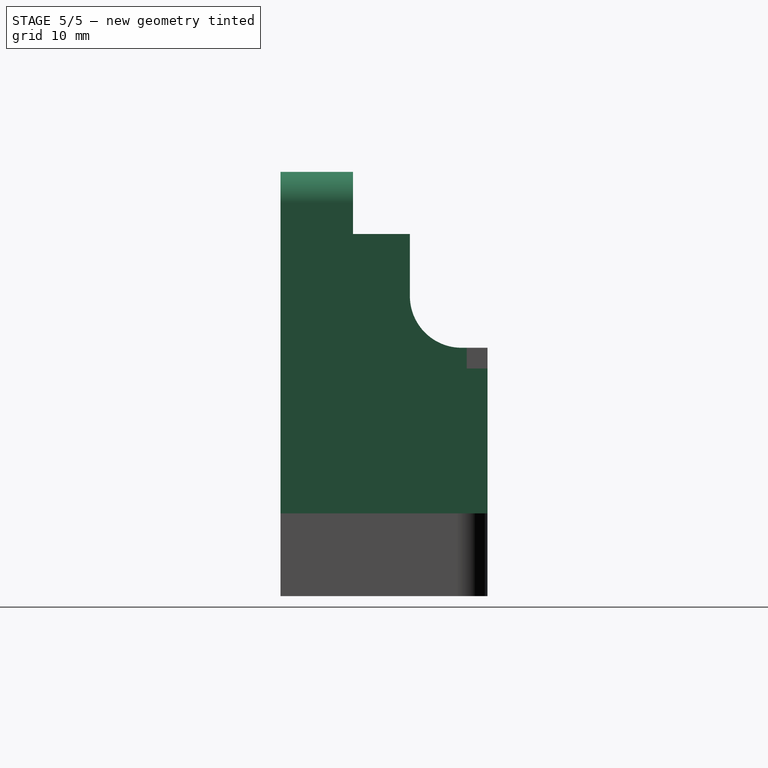
[diagram: stage 5 of 5 — right view after this stage's code; geometry added in this stage tinted green]
FEATURE [Part::Box] Box008  label="WireChannelBase"
  AttacherType = Attacher::AttachEngine3D
  Height = 35
  Length = 8
  Placement = pos=(-19.5,0,0) rot=(0,0,1;0rad)
  Width = 20
FEATURE [PartDesign::Fillet] Fillet
  Base = -> Pad004 [Edge90,Edge102,Edge81,Edge127,Edge128,Edge121]
  BaseFeature = -> Pad004
  Radius = 2.99
FEATURE [Part::Mirroring] Part__Mirroring  label="LeftClipCutFillet"
  Base = (3.57628e-07,5,2)
  Normal = (1,0,-1.19209e-07)
  Source = -> Fillet001
FEATURE [Part::MultiFuse] Fusion001  label="CaseFusion"
  Shapes = -> [Body,Part__Mirroring,Box008,Fillet001]
FEATURE [Part::Cut] Cut001  label="CaseCut"
  Base = -> Fusion001
  Tool = -> Fusion
FEATURE [Part::Fillet] Fillet002  label="AirChannelFillet"
  Base = -> Cut001
  Edges = 1 edges r=5.49: [Edge286]
FEATURE [Part::Fillet] Fillet003  label="TopClipFillet"
  Base = -> Fillet002
  Edges = 1 edges r=2.99: [Edge271]
FEATURE [Part::FeaturePython] refine  label="TopClipFillet_Refined"  # WARN: FeaturePython — macro-defined, semantics opaque (R4)
  Base = -> Fillet003
FEATURE [App::Part] Part  label="ClippingBasePart"
  Group = -> [Body,Cylinder,Box,Cut,Part__Mirroring,Cylinder002,Box002,Fusion001,Box003,Cylinder003,Cylinder005,Box008,Cylinder007,Part__Mirroring001,Part__Mirroring003,Box009,Part__Mirroring002,Box010,Cylinder008,Body001,Fusion,Box011,Box012,Cut001,Fillet001,Fusion002,Cylinder010,Body002,Clone,Cylinder011,Box013,Box014,Fillet002,Fillet003,refine]
  License = CC BY 3.0
  LicenseURL = http://creativecommons.org/licenses/by/3.0/
  Origin = -> Origin
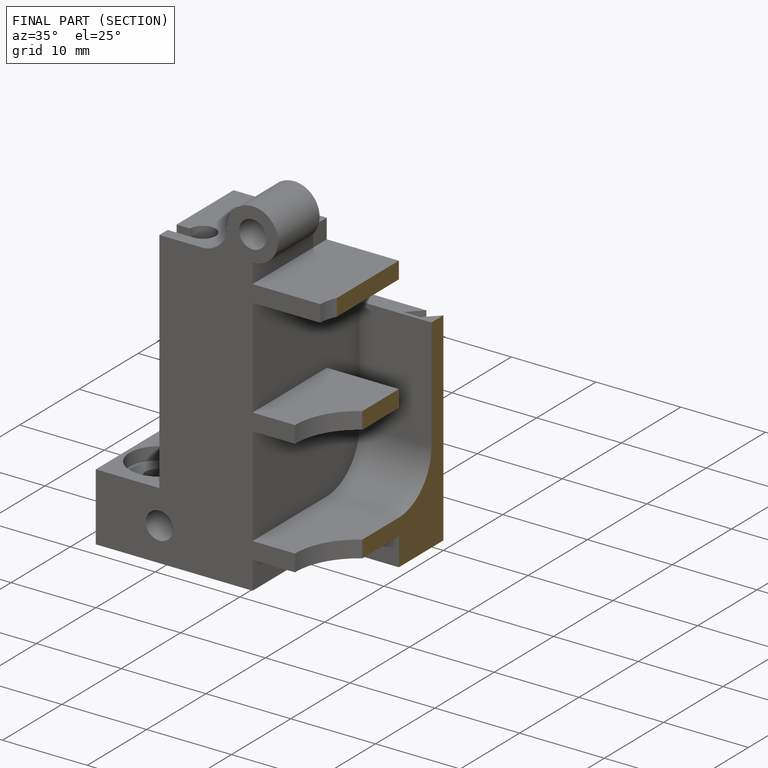
[diagram: finished part — half-section view (interior)]
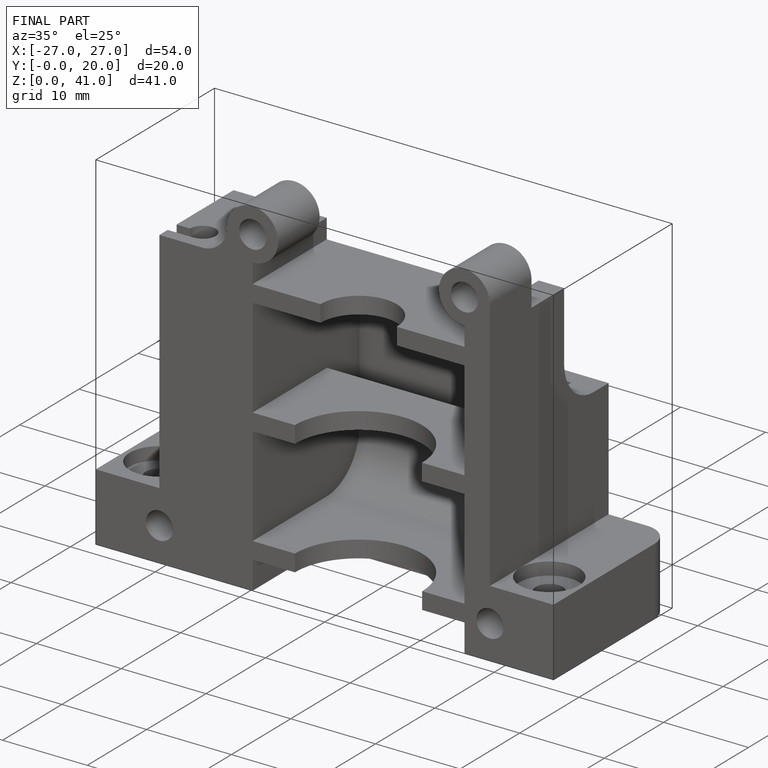
[diagram: finished part — iso view with bounding-box wireframe]
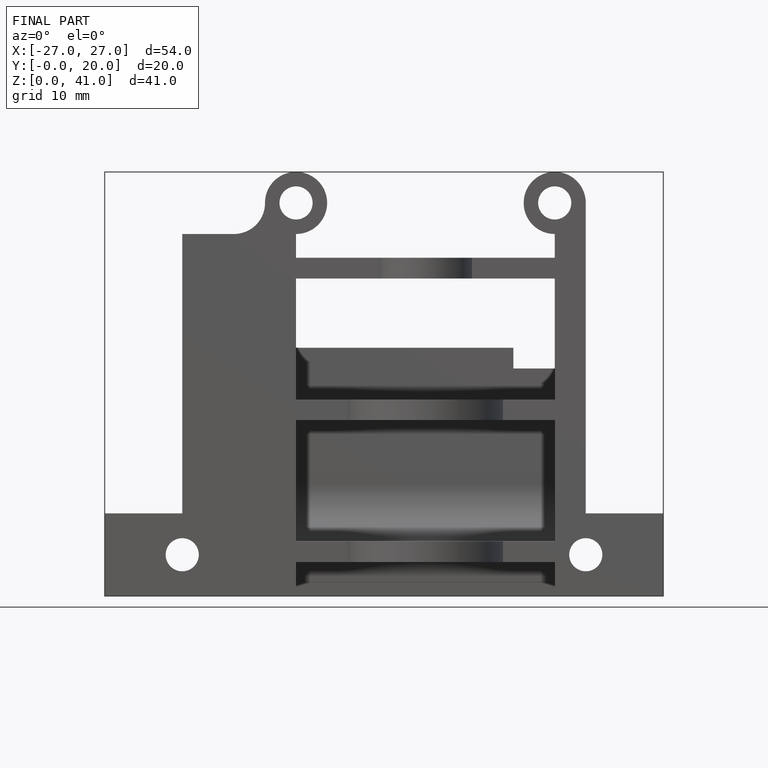
[diagram: finished part — front view with bounding-box wireframe]
